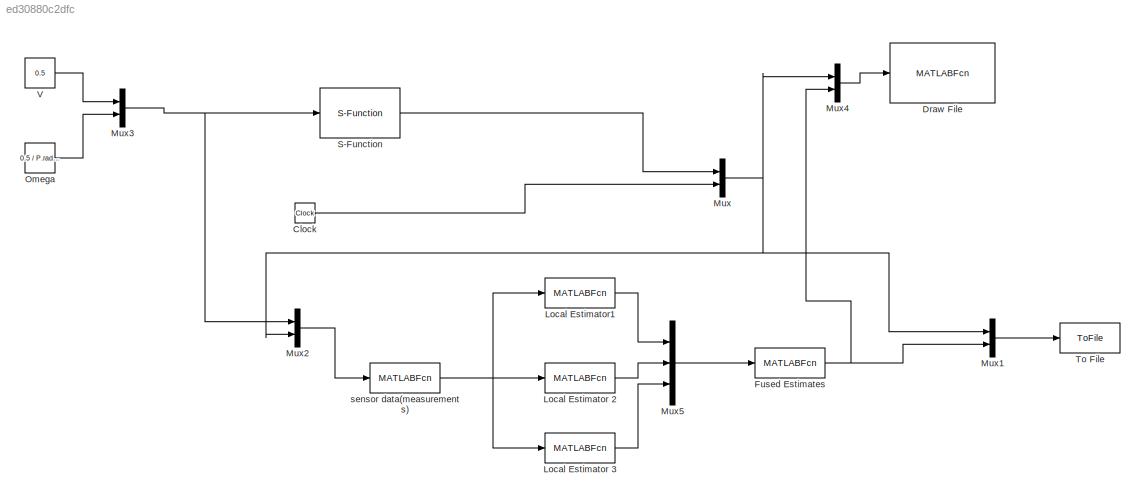
MODEL slx_ed30880c2dfc
KIND model
CONFIG AbsTol = auto
CONFIG EnableMultiTasking = off
CONFIG FixedStep = auto
CONFIG MaxStep = auto
CONFIG MinStep = auto
CONFIG RelTol = 1e-3
CONFIG SampleTimeConstraint = Unconstrained
CONFIG SolverName = VariableStepAuto
CONFIG StartTime = 0.0
CONFIG StopTime = P.SimTime
BLOCK [MATLABFcn]  sensor data(measurements) 
  MATLABFcn = Sensor_model_v4(u,P)
  OutputDimensions = 3*P.NumLm + 2 + 1
  Ports = [1, 1]
BLOCK [Clock] Clock
BLOCK [MATLABFcn] Draw File 
  MATLABFcn = drawvehiclef4(u,P)
  OutputDimensions = 0
  Ports = [1]
BLOCK [MATLABFcn] Fused Estimates
  MATLABFcn = fusion_filter(u,P)
  OutputDimensions = 2*(3+2*P.NumLm)
  Ports = [1, 1]
BLOCK [MATLABFcn] Local Estimator 2
  MATLABFcn = Estimator_SLAMLf2(u,P)
  OutputDimensions = 10
  Ports = [1, 1]
BLOCK [MATLABFcn] Local Estimator 3
  MATLABFcn = Estimator_SLAMLf3(u,P)
  OutputDimensions = 10
  Ports = [1, 1]
BLOCK [MATLABFcn] Local Estimator1 
  MATLABFcn = Estimator_SLAMLf1(u,P)
  OutputDimensions = 10
  Ports = [1, 1]
BLOCK [Mux] Mux
  DisplayOption = bar
  Inputs = 2
  Ports = [2, 1]
BLOCK [Mux] Mux1
  DisplayOption = bar
  Inputs = 2
  Ports = [2, 1]
BLOCK [Mux] Mux2
  DisplayOption = bar
  Inputs = 2
  Ports = [2, 1]
BLOCK [Mux] Mux3
  DisplayOption = bar
  Inputs = 2
  Ports = [2, 1]
BLOCK [Mux] Mux4
  DisplayOption = bar
  Inputs = 2
  Ports = [2, 1]
BLOCK [Mux] Mux5
  DisplayOption = bar
  Inputs = 3
  Ports = [3, 1]
BLOCK [Constant] Omega
  Value = 0.5 / P.radius
BLOCK [S-Function] S-Function
  EnableBusSupport = off
  FunctionName = vehicle4
  Parameters = P
  Ports = [1, 1]
  SFcnIsStateOwnerBlock = off
  SFunctionDeploymentMode = off
BLOCK [ToFile] To File
  Filename = plot_fused.mat
  MatrixName = dat
  Ports = [1]
  SaveFormat = Timeseries
BLOCK [Constant] V
  Value = 0.5
NET  sensor data(measurements) :1 -> Local Estimator 2:1, Local Estimator 3:1, Local Estimator1 :1
LINE Clock:1 -> Mux:2
NET Fused Estimates:1 -> Mux1:2, Mux4:2
LINE Local Estimator 2:1 -> Mux5:2
LINE Local Estimator 3:1 -> Mux5:3
LINE Local Estimator1 :1 -> Mux5:1
LINE Mux1:1 -> To File:1
LINE Mux2:1 ->  sensor data(measurements) :1
NET Mux3:1 -> Mux2:1, S-Function:1
LINE Mux4:1 -> Draw File :1
LINE Mux5:1 -> Fused Estimates:1
NET Mux:1 -> Mux1:1, Mux2:2, Mux4:1
LINE Omega:1 -> Mux3:2
LINE S-Function:1 -> Mux:1
LINE V:1 -> Mux3:1
note: NET lines group one-source signal fan-out (src -> all destinations, sorted); 1:1 wires keep LINE
